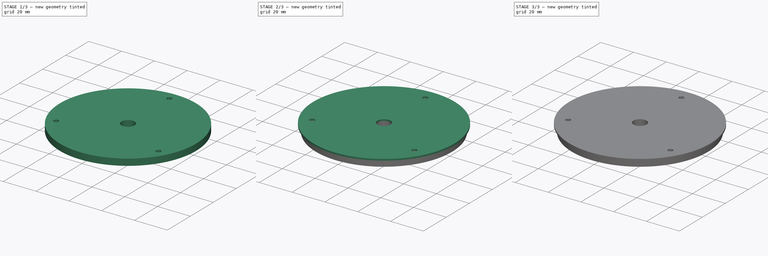
[diagram: build sequence overview — one tinted view per stage of 3, left to right]
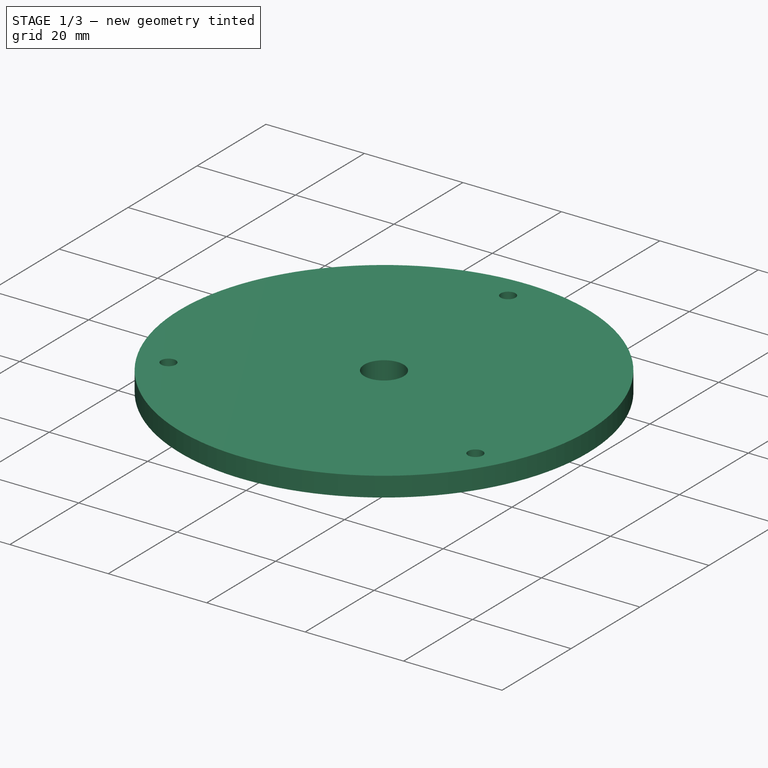
[diagram: stage 1 of 3 — iso view after this stage's code; geometry added in this stage tinted green]
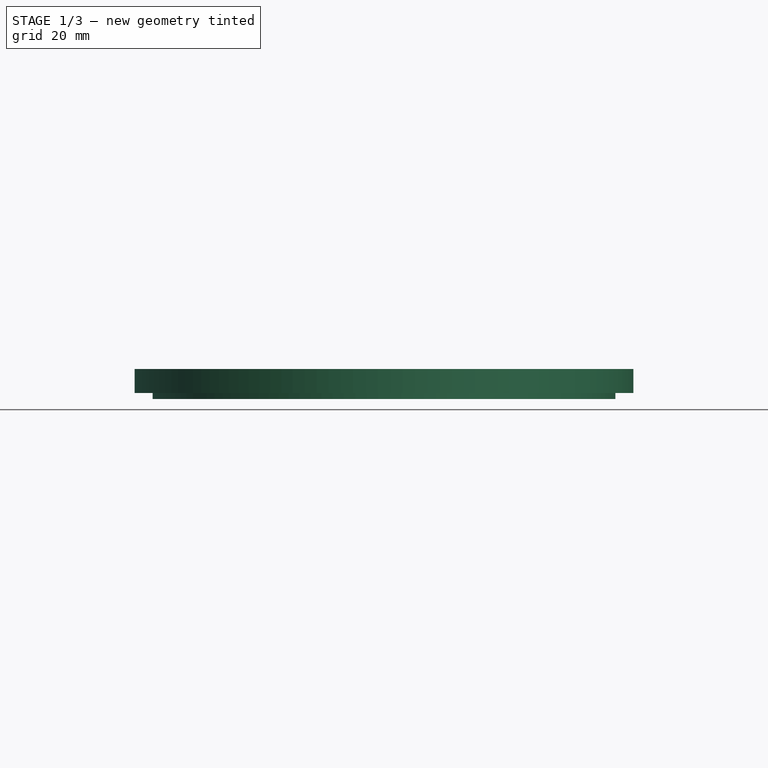
[diagram: stage 1 of 3 — front view after this stage's code; geometry added in this stage tinted green]
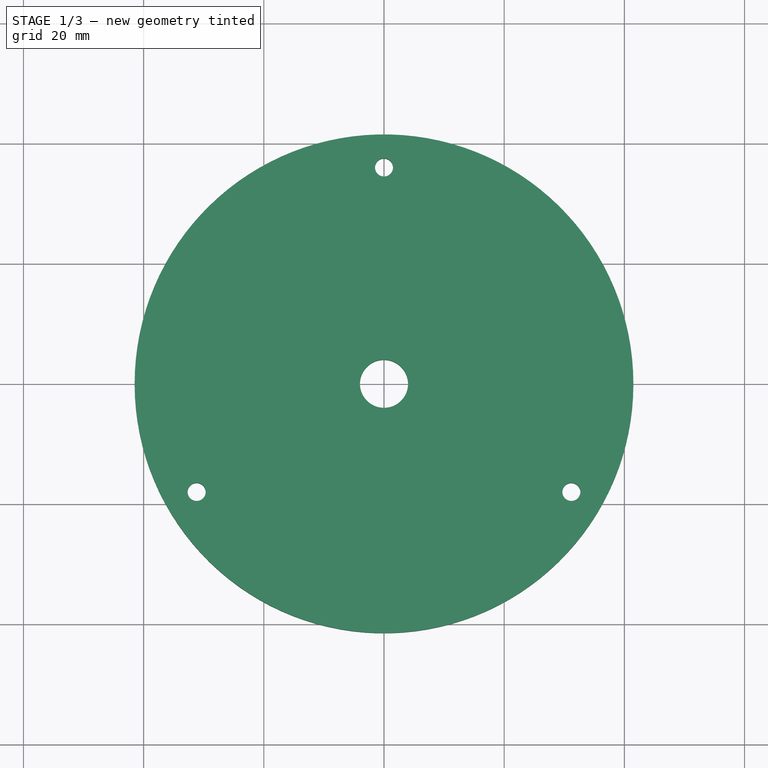
[diagram: stage 1 of 3 — top view after this stage's code; geometry added in this stage tinted green]
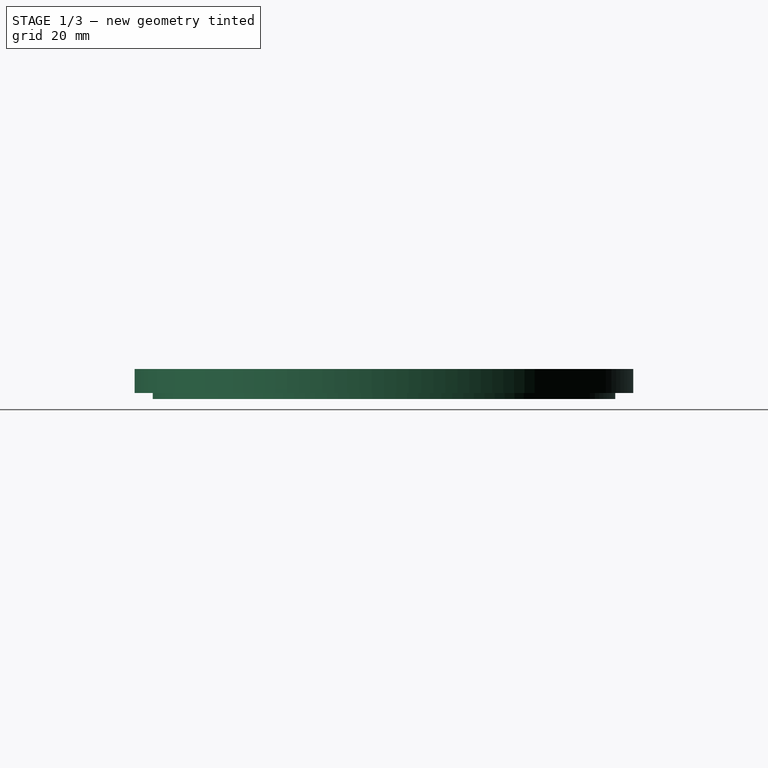
[diagram: stage 1 of 3 — right view after this stage's code; geometry added in this stage tinted green]
FCSTD DOCUMENT  (FreeCAD 0.19R24276 (Git))
Label: Ring_underglass_h_3_5mm_V1
License: All rights reserved
LicenseURL: http://en.wikipedia.org/wiki/All_rights_reserved
objects: Sketcher::SketchObject×4, PartDesign::Pad×3, PartDesign::Chamfer×3, PartDesign::Pocket×1, PartDesign::Body×1
note: 19 computed .brp shape members not serialized (recipe doc carries the construction recipe); baked Part::Feature solids carry a one-line shape summary decoded from their .brp

FEATURE [Sketcher::SketchObject] Sketch006  label="Sketch006_d72_3_otv_d3__d83"
  FullyConstrained = true
  MapMode = 5
  Placement = pos=(0,0,22) rot=(0,0,1;0rad)
  sketch-geometry (9):
    g0: LineSegment StartX=0 StartY=36 StartZ=0 EndX=-31.1769 EndY=-18 EndZ=0
    g1: LineSegment StartX=-31.1769 StartY=-18 StartZ=0 EndX=31.1769 EndY=-18 EndZ=0
    g2: LineSegment StartX=31.1769 StartY=-18 StartZ=0 EndX=0 EndY=36 EndZ=0
    g3: Circle CenterX=0 CenterY=0 CenterZ=0 NormalX=0 NormalY=0 NormalZ=1 AngleXU=0 Radius=36
    g4: Circle CenterX=0 CenterY=36 CenterZ=0 NormalX=0 NormalY=0 NormalZ=1 AngleXU=0 Radius=1.5
    g5: Circle CenterX=31.1769 CenterY=-18 CenterZ=0 NormalX=0 NormalY=0 NormalZ=1 AngleXU=0 Radius=1.5
    g6: Circle CenterX=-31.1769 CenterY=-18 CenterZ=0 NormalX=0 NormalY=0 NormalZ=1 AngleXU=0 Radius=1.5
    g7: Circle CenterX=0 CenterY=0 CenterZ=0 NormalX=0 NormalY=0 NormalZ=1 AngleXU=0 Radius=41.5
    g8: Circle CenterX=0 CenterY=0 CenterZ=0 NormalX=0 NormalY=0 NormalZ=1 AngleXU=0 Radius=4
  constraints (21):
    c: Coincident(g0,g1)
    c: Coincident(g1,g2)
    c: Coincident(g2,g0)
    c: Equal(g0,g1)
    c: Equal(g0,g2)
    c: PointOnObject(g0,g3)
    c: PointOnObject(g1,g3)
    c: PointOnObject(g2,g3)
    c: Coincident(g3,g-1)
    c: PointOnObject(g2,g-2)
    c: Diameter(g3) = 72
    c: Coincident(g4,g0)
    c: Coincident(g5,g1)
    c: Coincident(g6,g0)
    c: Diameter(g6) = 3
    c: Equal(g6,g4)
    c: Equal(g6,g5)
    c: Coincident(g7,g-1)
    c: Diameter(g7) = 83
    c: Coincident(g8,g7)
    c: Radius(g8) = 4
FEATURE [PartDesign::Pad] Pad  label="Pad_h4"
  Direction = (1,1,1)
  Length = 4
  Length2 = 100
  Placement = pos=(0,0,22) rot=(0,0,1;0rad)
  Profile = -> Sketch006
  Type = 0
FEATURE [Sketcher::SketchObject] Sketch007  label="Sketch006_d72_3_otv_d3__d084"
  FullyConstrained = true
  MapMode = 5
  Placement = pos=(0,0,22) rot=(0,0,1;0rad)
  sketch-geometry (9):
    g0: LineSegment StartX=0 StartY=36 StartZ=0 EndX=-31.1769 EndY=-18 EndZ=0
    g1: LineSegment StartX=-31.1769 StartY=-18 StartZ=0 EndX=31.1769 EndY=-18 EndZ=0
    g2: LineSegment StartX=31.1769 StartY=-18 StartZ=0 EndX=0 EndY=36 EndZ=0
    g3: Circle CenterX=0 CenterY=0 CenterZ=0 NormalX=0 NormalY=0 NormalZ=1 AngleXU=0 Radius=36
    g4: Circle CenterX=0 CenterY=36 CenterZ=0 NormalX=0 NormalY=0 NormalZ=1 AngleXU=0 Radius=1.5
    g5: Circle CenterX=31.1769 CenterY=-18 CenterZ=0 NormalX=0 NormalY=0 NormalZ=1 AngleXU=0 Radius=1.5
    g6: Circle CenterX=-31.1769 CenterY=-18 CenterZ=0 NormalX=0 NormalY=0 NormalZ=1 AngleXU=0 Radius=1.5
    g7: Circle CenterX=0 CenterY=0 CenterZ=0 NormalX=0 NormalY=0 NormalZ=1 AngleXU=0 Radius=38.5
    g8: Circle CenterX=0 CenterY=0 CenterZ=0 NormalX=0 NormalY=0 NormalZ=1 AngleXU=0 Radius=4
  constraints (21):
    c: Coincident(g0,g1)
    c: Coincident(g1,g2)
    c: Coincident(g2,g0)
    c: Equal(g0,g1)
    c: Equal(g0,g2)
    c: PointOnObject(g0,g3)
    c: PointOnObject(g1,g3)
    c: PointOnObject(g2,g3)
    c: Coincident(g3,g-1)
    c: PointOnObject(g2,g-2)
    c: Diameter(g3) = 72
    c: Coincident(g4,g0)
    c: Coincident(g5,g1)
    c: Coincident(g6,g0)
    c: Diameter(g6) = 3
    c: Equal(g6,g4)
    c: Equal(g6,g5)
    c: Coincident(g7,g-1)
    c: Diameter(g7) = 77
    c: Coincident(g8,g7)
    c: Radius(g8) = 4
FEATURE [PartDesign::Pad] Pad001  label="Pad001_h1"
  BaseFeature = -> Pad
  Direction = (1,1,1)
  Length = 1
  Length2 = 100
  Placement = pos=(0,0,22) rot=(0,0,1;0rad)
  Profile = -> Sketch007
  Reversed = true
  Type = 0
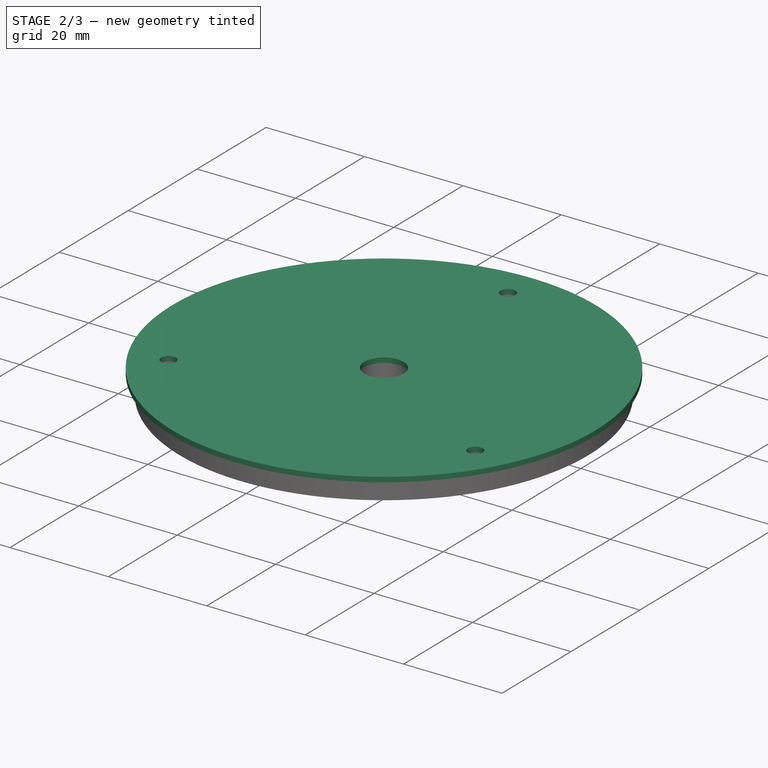
[diagram: stage 2 of 3 — iso view after this stage's code; geometry added in this stage tinted green]
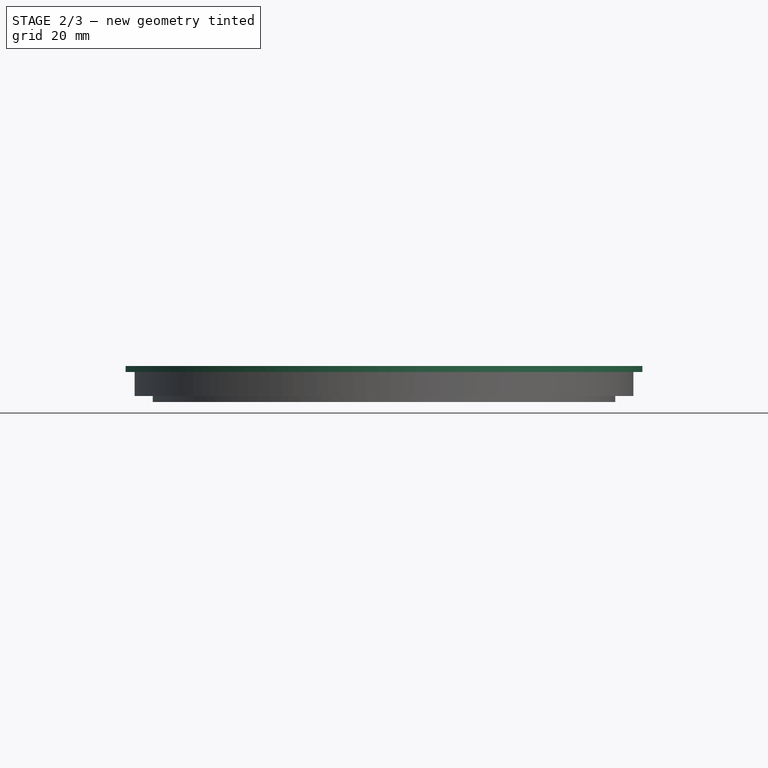
[diagram: stage 2 of 3 — front view after this stage's code; geometry added in this stage tinted green]
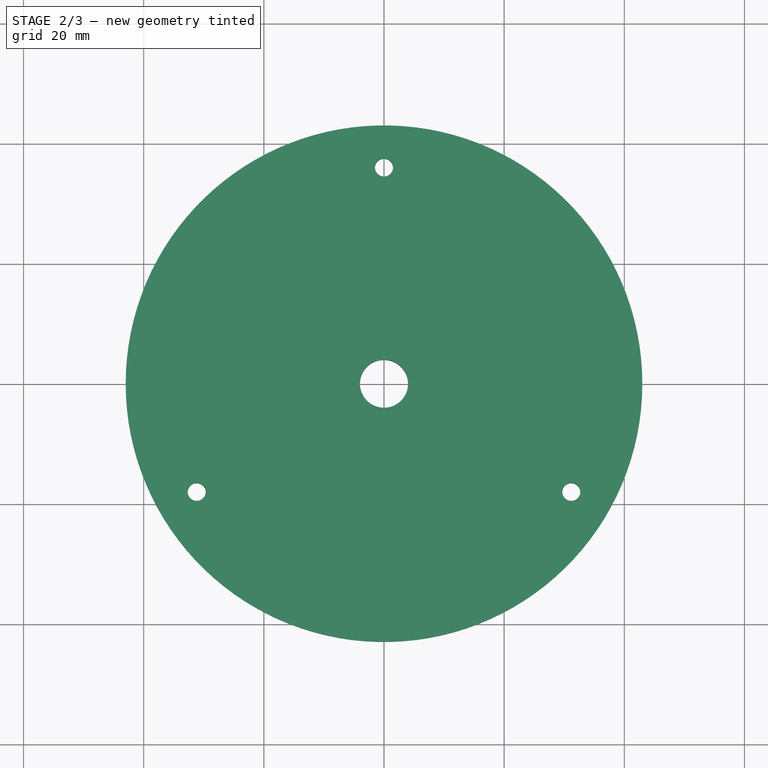
[diagram: stage 2 of 3 — top view after this stage's code; geometry added in this stage tinted green]
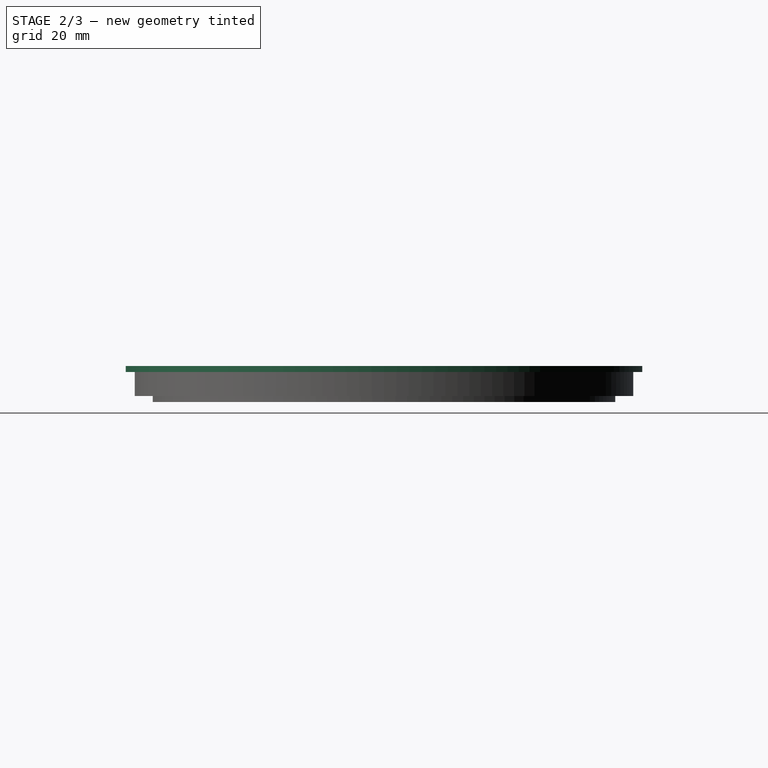
[diagram: stage 2 of 3 — right view after this stage's code; geometry added in this stage tinted green]
FEATURE [Sketcher::SketchObject] Sketch008  label="Sketch006_d72_3_otv_d3__d086"
  FullyConstrained = true
  MapMode = 5
  Placement = pos=(0,0,26) rot=(0,0,1;0rad)
  sketch-geometry (9):
    g0: LineSegment StartX=0 StartY=36 StartZ=0 EndX=-31.1769 EndY=-18 EndZ=0
    g1: LineSegment StartX=-31.1769 StartY=-18 StartZ=0 EndX=31.1769 EndY=-18 EndZ=0
    g2: LineSegment StartX=31.1769 StartY=-18 StartZ=0 EndX=0 EndY=36 EndZ=0
    g3: Circle CenterX=0 CenterY=0 CenterZ=0 NormalX=0 NormalY=0 NormalZ=1 AngleXU=0 Radius=36
    g4: Circle CenterX=0 CenterY=36 CenterZ=0 NormalX=0 NormalY=0 NormalZ=1 AngleXU=0 Radius=1.5
    g5: Circle CenterX=31.1769 CenterY=-18 CenterZ=0 NormalX=0 NormalY=0 NormalZ=1 AngleXU=0 Radius=1.5
    g6: Circle CenterX=-31.1769 CenterY=-18 CenterZ=0 NormalX=0 NormalY=0 NormalZ=1 AngleXU=0 Radius=1.5
    g7: Circle CenterX=0 CenterY=0 CenterZ=0 NormalX=0 NormalY=0 NormalZ=1 AngleXU=0 Radius=43
    g8: Circle CenterX=0 CenterY=0 CenterZ=0 NormalX=0 NormalY=0 NormalZ=1 AngleXU=0 Radius=4
  constraints (21):
    c: Coincident(g0,g1)
    c: Coincident(g1,g2)
    c: Coincident(g2,g0)
    c: Equal(g0,g1)
    c: Equal(g0,g2)
    c: PointOnObject(g0,g3)
    c: PointOnObject(g1,g3)
    c: PointOnObject(g2,g3)
    c: Coincident(g3,g-1)
    c: PointOnObject(g2,g-2)
    c: Diameter(g3) = 72
    c: Coincident(g4,g0)
    c: Coincident(g5,g1)
    c: Coincident(g6,g0)
    c: Diameter(g6) = 3
    c: Equal(g6,g4)
    c: Equal(g6,g5)
    c: Coincident(g7,g-1)
    c: Diameter(g7) = 86
    c: Coincident(g8,g7)
    c: Radius(g8) = 4
FEATURE [PartDesign::Pad] Pad002  label="Pad002_h1"
  BaseFeature = -> Pad001
  Direction = (1,1,1)
  Length = 1
  Length2 = 100
  Placement = pos=(0,0,22) rot=(0,0,1;0rad)
  Profile = -> Sketch008
  Type = 0
FEATURE [Sketcher::SketchObject] Sketch
  FullyConstrained = true
  MapMode = 5
  Placement = pos=(0,0,21) rot=(1,0,0;3.14159rad)
  Support = -> [Pad002]
  sketch-geometry (2):
    g0: Circle CenterX=0 CenterY=0 CenterZ=0 NormalX=0 NormalY=0 NormalZ=1 AngleXU=0 Radius=10
    g1: Circle CenterX=0 CenterY=0 CenterZ=0 NormalX=0 NormalY=0 NormalZ=1 AngleXU=0 Radius=31
  constraints (4):
    c: Coincident(g0,g-1)
    c: Coincident(g1,g0)
    c: Diameter(g0) = 20
    c: Diameter(g1) = 62
FEATURE [PartDesign::Pocket] Pocket  label="Pocket_4"
  BaseFeature = -> Pad002
  Length = 4
  Length2 = 100
  Placement = pos=(0,0,22) rot=(0,0,1;0rad)
  Profile = -> Sketch
  Type = 0
FEATURE [PartDesign::Chamfer] Chamfer
  Angle = 45
  Base = -> Pocket [Edge43]
  BaseFeature = -> Pocket
  ChamferType = 0
  FlipDirection = false
  Placement = pos=(0,0,22) rot=(0,0,1;0rad)
  Size = 0.9
  Size2 = 1
  SupportTransform = false
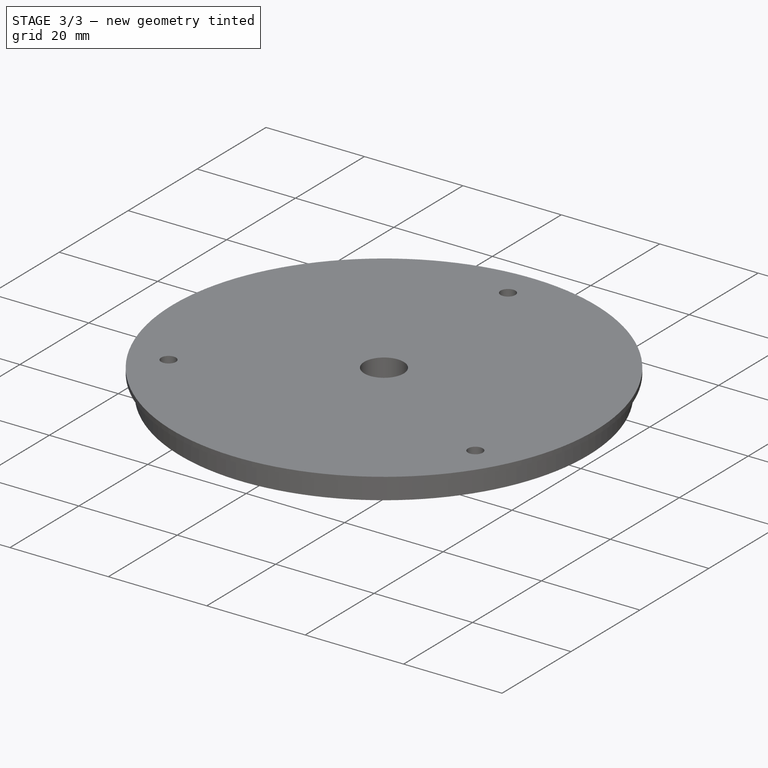
[diagram: stage 3 of 3 — iso view after this stage's code; geometry added in this stage tinted green]
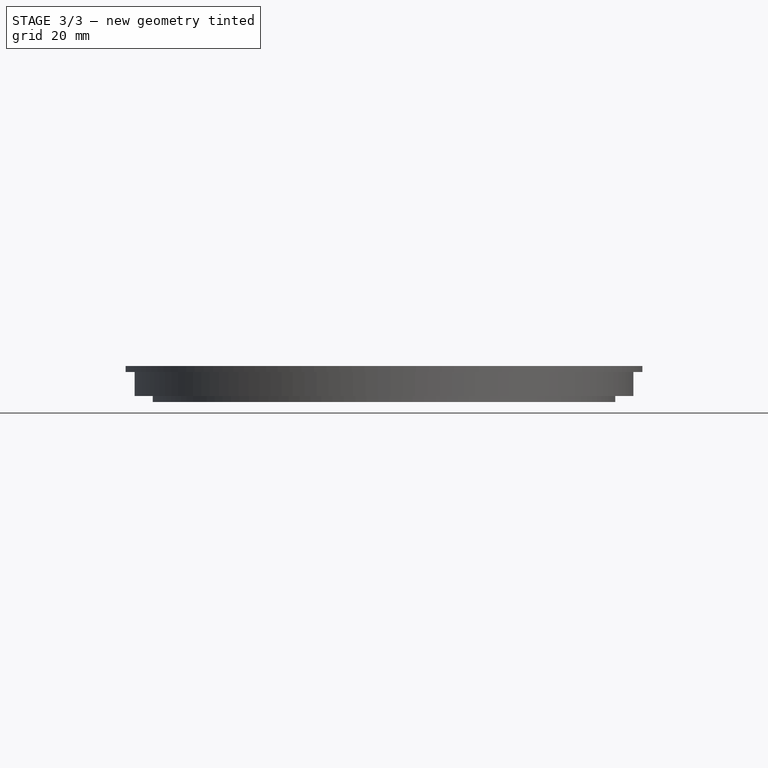
[diagram: stage 3 of 3 — front view after this stage's code; geometry added in this stage tinted green]
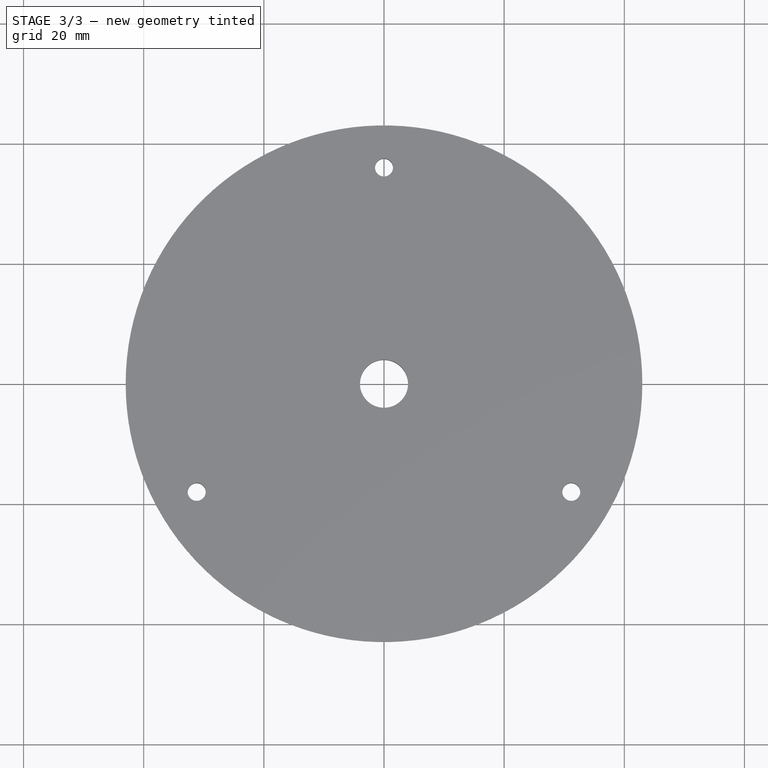
[diagram: stage 3 of 3 — top view after this stage's code; geometry added in this stage tinted green]
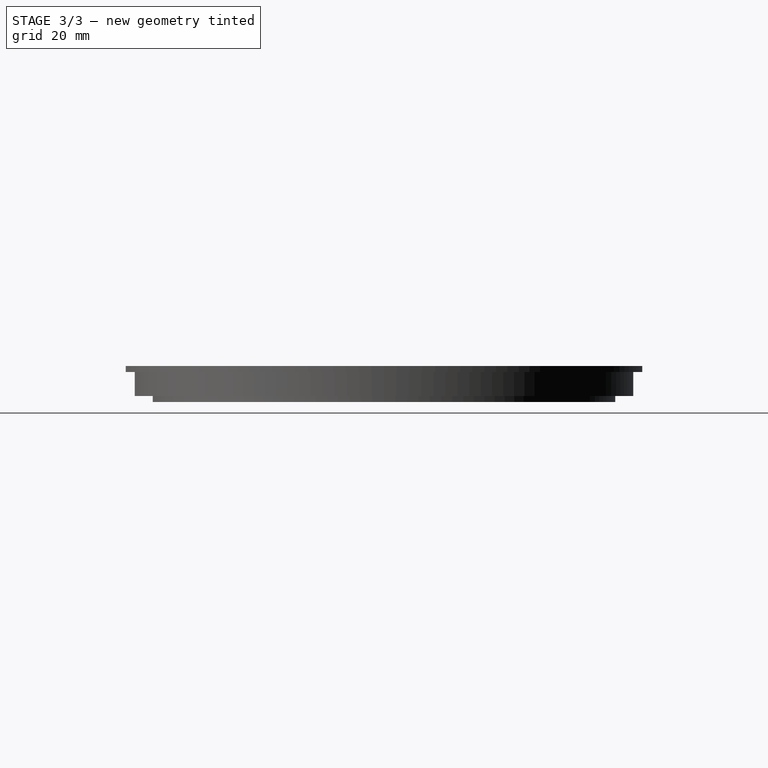
[diagram: stage 3 of 3 — right view after this stage's code; geometry added in this stage tinted green]
FEATURE [PartDesign::Chamfer] Chamfer001
  Angle = 45
  Base = -> Chamfer [Edge12]
  BaseFeature = -> Chamfer
  ChamferType = 0
  FlipDirection = false
  Placement = pos=(0,0,22) rot=(0,0,1;0rad)
  Size = 3
  Size2 = 1
  SupportTransform = false
FEATURE [PartDesign::Chamfer] Chamfer002
  Angle = 45
  Base = -> Chamfer001 [Edge7]
  BaseFeature = -> Chamfer001
  ChamferType = 0
  FlipDirection = false
  Placement = pos=(0,0,22) rot=(0,0,1;0rad)
  Size = 2
  Size2 = 1
  SupportTransform = false
FEATURE [PartDesign::Body] Body
  Group = -> [Sketch006,Pad,Sketch007,Pad001,Sketch008,Pad002,Sketch,Pocket,Chamfer,Chamfer001,Chamfer002]
  Origin = -> Origin
  Tip = -> Chamfer002
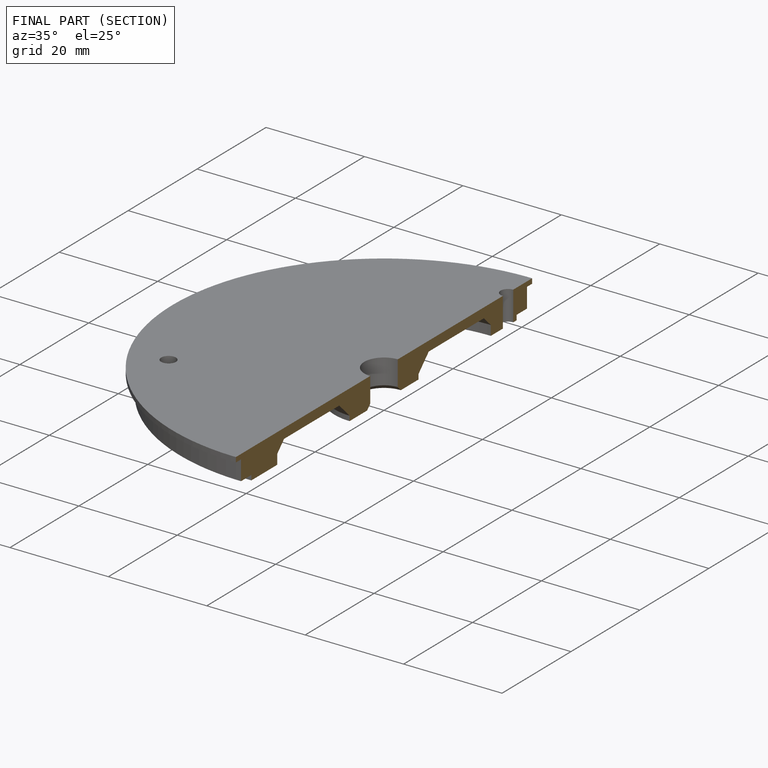
[diagram: finished part — half-section view (interior)]
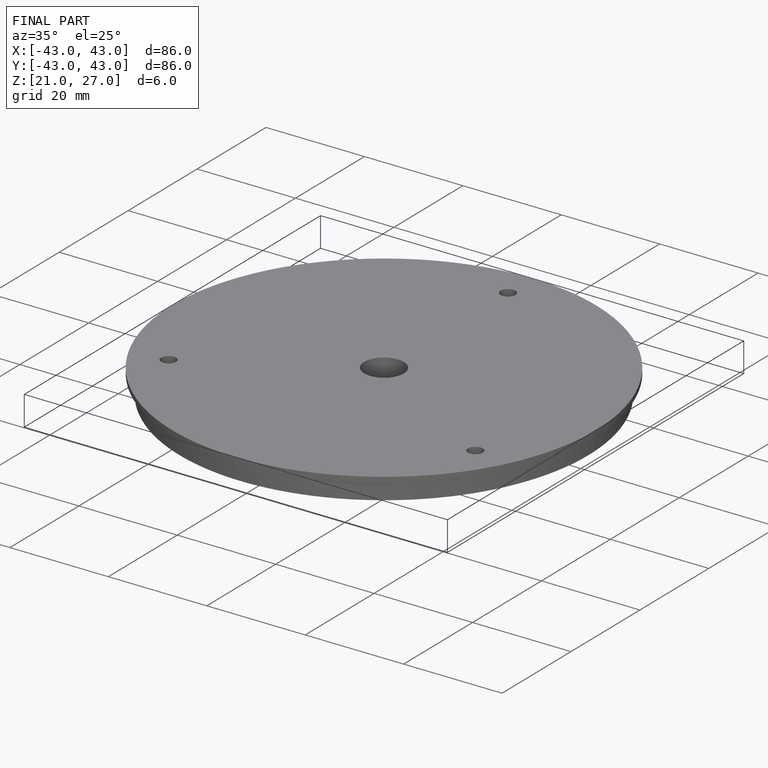
[diagram: finished part — iso view with bounding-box wireframe]
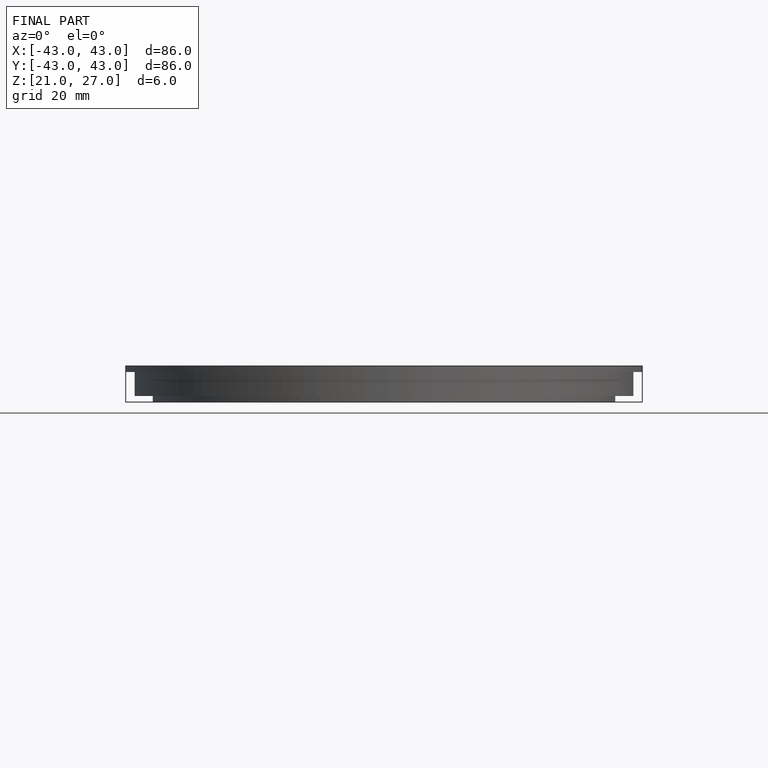
[diagram: finished part — front view with bounding-box wireframe]
